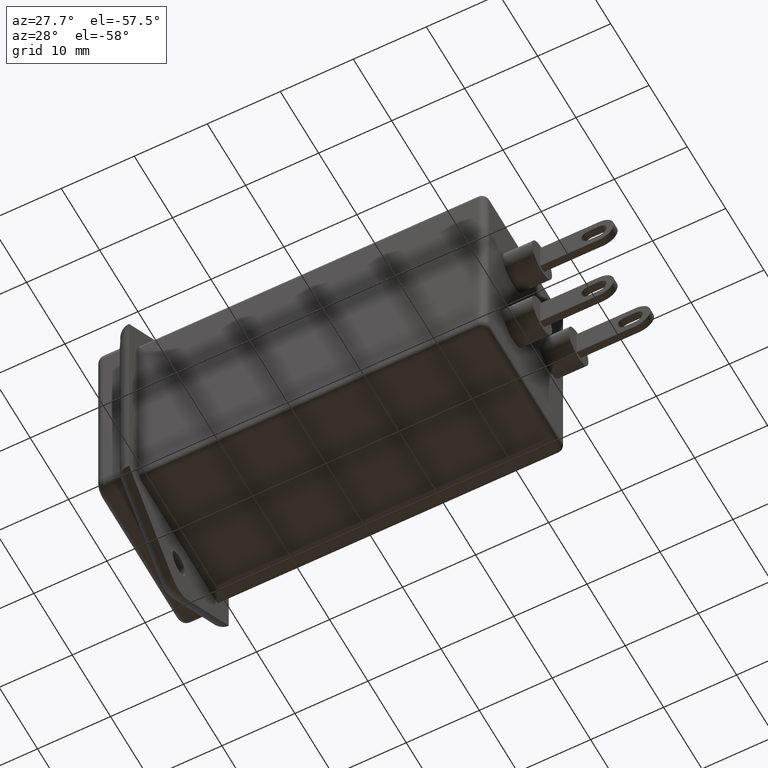
[diagram: clean part render]
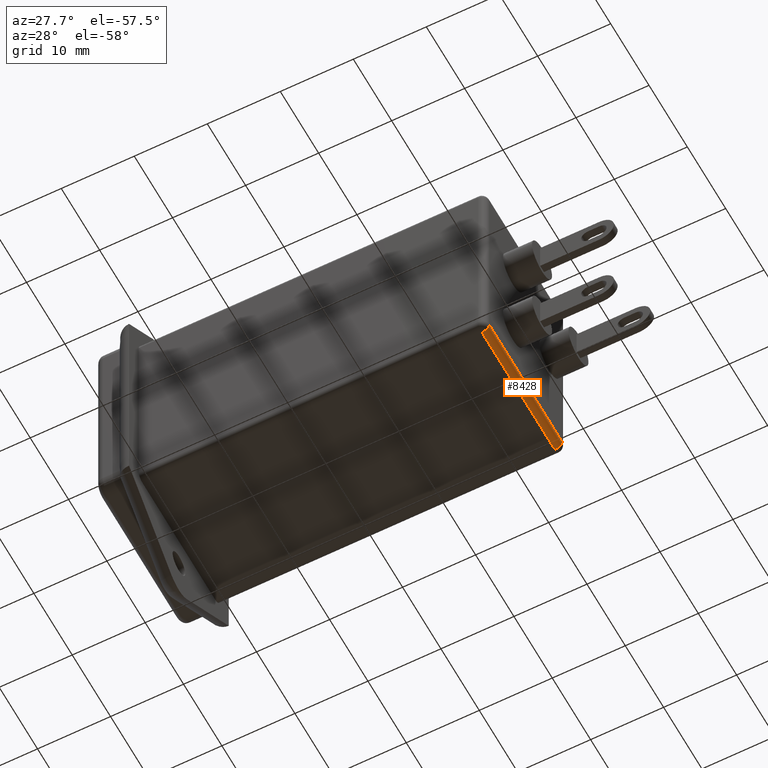
[diagram: same view with one face highlighted and labeled with its STEP entity id]
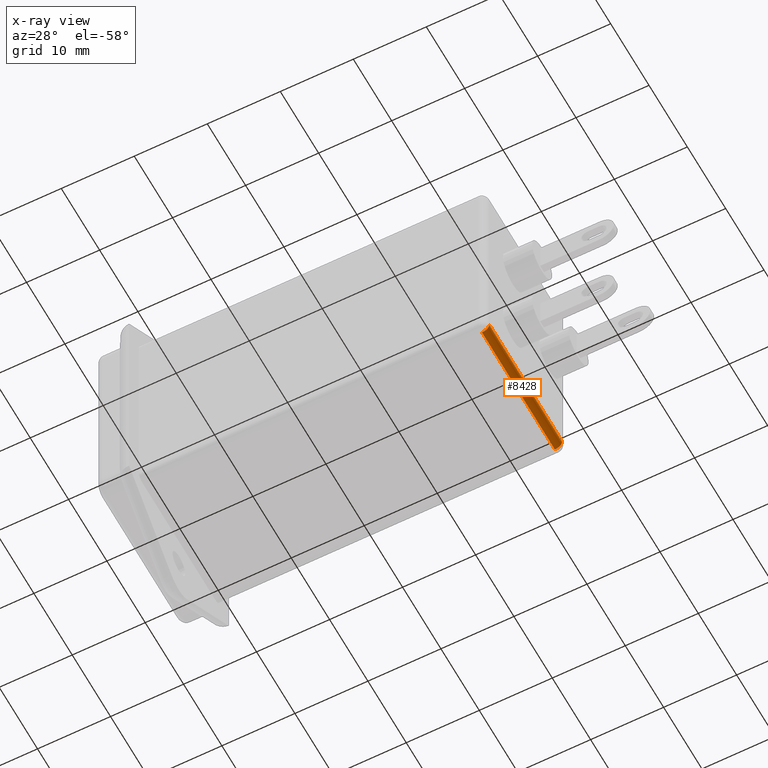
[diagram: x-ray of the same camera — body ghosted, the highlighted face saturated]
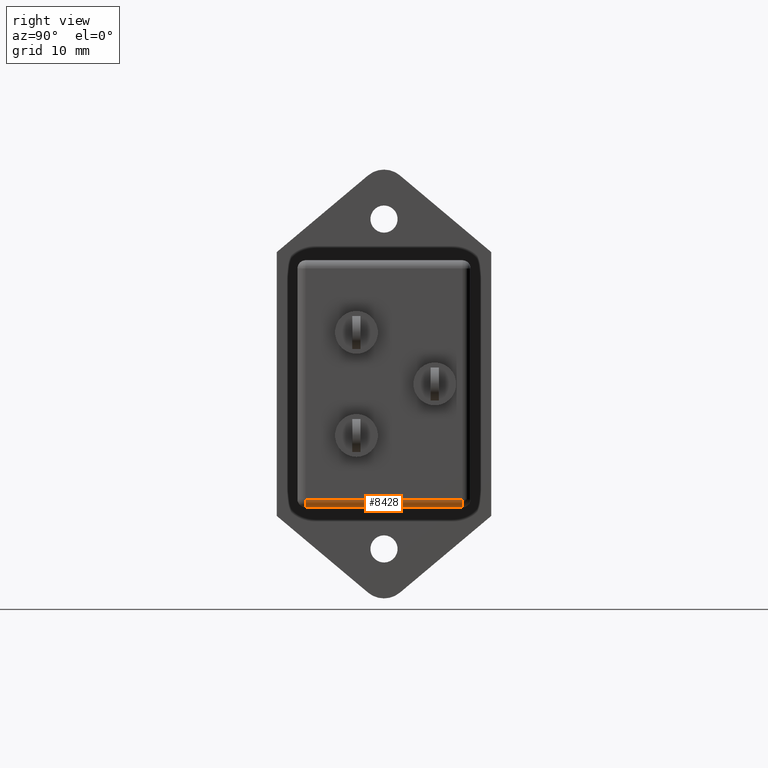
[diagram: same view with one face highlighted and labeled with its STEP entity id]
A machine part, auxiliary view. The second image highlights one B-rep face of the part: STEP entity #8428.
The next image is the same camera in x-ray: the body ghosted, the highlighted face saturated — about 0% of this face is hidden behind the body in this view.
A second angle (right view) of the same face is appended — the face is thin or edge-on in the first view.
In plain terms, the highlighted cylindrical surface (edge-blend (fillet) strip) has radius 1 mm, axis along (0, -1, 0).
Its self-contained STEP definition (entity closure, byte-faithful):
#31 = CARTESIAN_POINT ( 'NONE',  ( 51.89999999999999900, -1.999999999999997300, 0.4999999999999997800 ) ) ;
#220 = CARTESIAN_POINT ( 'NONE',  ( 51.89999999999999900, -20.99999999999999600, 1.499999999999999800 ) ) ;
#529 = CIRCLE ( 'NONE', #709, 1.000000000000000000 ) ;
#532 = AXIS2_PLACEMENT_3D ( 'NONE', #3259, #646, #1320 ) ;
#646 = DIRECTION ( 'NONE',  ( 0.0000000000000000000, -1.000000000000000000, 0.0000000000000000000 ) ) ;
#709 = AXIS2_PLACEMENT_3D ( 'NONE', #5903, #3888, #4484 ) ;
#1043 = ORIENTED_EDGE ( 'NONE', *, *, #2075, .F. ) ;
#1100 = VECTOR ( 'NONE', #5094, 1000.000000000000000 ) ;
#1320 = DIRECTION ( 'NONE',  ( 0.0000000000000000000, 0.0000000000000000000, -1.000000000000000000 ) ) ;
#1524 = ORIENTED_EDGE ( 'NONE', *, *, #3885, .T. ) ;
#2075 = EDGE_CURVE ( 'NONE', #4379, #7516, #3340, .T. ) ;
#2118 = CARTESIAN_POINT ( 'NONE',  ( 52.90000000000000600, -0.9999999999999974500, 1.499999999999999600 ) ) ;
#2503 = VECTOR ( 'NONE', #4745, 1000.000000000000000 ) ;
#2564 = FACE_OUTER_BOUND ( 'NONE', #2614, .T. ) ;
#2614 = EDGE_LOOP ( 'NONE', ( #1524, #1043, #8422, #8142 ) ) ;
#2664 = CARTESIAN_POINT ( 'NONE',  ( 52.90000000000000600, -20.99999999999999600, 1.499999999999999600 ) ) ;
#2872 = EDGE_CURVE ( 'NONE', #7859, #3985, #4966, .T. ) ;
#3107 = CARTESIAN_POINT ( 'NONE',  ( 51.89999999999999900, -22.00000000000000000, 0.4999999999999997800 ) ) ;
#3259 = CARTESIAN_POINT ( 'NONE',  ( 51.89999999999999900, 0.0000000000000000000, 1.499999999999999600 ) ) ;
#3340 = LINE ( 'NONE', #2118, #2503 ) ;
#3435 = EDGE_CURVE ( 'NONE', #3985, #4379, #4516, .T. ) ;
#3885 = EDGE_CURVE ( 'NONE', #7859, #7516, #529, .T. ) ;
#3888 = DIRECTION ( 'NONE',  ( 0.0000000000000000000, -1.000000000000000000, -0.0000000000000000000 ) ) ;
#3985 = VERTEX_POINT ( 'NONE', #7098 ) ;
#4379 = VERTEX_POINT ( 'NONE', #2664 ) ;
#4484 = DIRECTION ( 'NONE',  ( 0.0000000000000000000, 0.0000000000000000000, 1.000000000000000000 ) ) ;
#4516 = CIRCLE ( 'NONE', #6386, 1.000000000000000000 ) ;
#4745 = DIRECTION ( 'NONE',  ( 0.0000000000000000000, 1.000000000000000000, -0.0000000000000000000 ) ) ;
#4966 = LINE ( 'NONE', #3107, #1100 ) ;
#5094 = DIRECTION ( 'NONE',  ( -0.0000000000000000000, -1.000000000000000000, 0.0000000000000000000 ) ) ;
#5659 = DIRECTION ( 'NONE',  ( 0.0000000000000000000, -1.000000000000000000, 0.0000000000000000000 ) ) ;
#5903 = CARTESIAN_POINT ( 'NONE',  ( 51.89999999999999900, -1.999999999999997300, 1.499999999999999600 ) ) ;
#6086 = CARTESIAN_POINT ( 'NONE',  ( 52.90000000000000600, -1.999999999999997300, 1.499999999999999600 ) ) ;
#6386 = AXIS2_PLACEMENT_3D ( 'NONE', #220, #5659, #8285 ) ;
#7098 = CARTESIAN_POINT ( 'NONE',  ( 51.89999999999999900, -20.99999999999999600, 0.4999999999999997800 ) ) ;
#7516 = VERTEX_POINT ( 'NONE', #6086 ) ;
#7859 = VERTEX_POINT ( 'NONE', #31 ) ;
#8108 = CYLINDRICAL_SURFACE ( 'NONE', #532, 1.000000000000000000 ) ;
#8142 = ORIENTED_EDGE ( 'NONE', *, *, #2872, .F. ) ;
#8285 = DIRECTION ( 'NONE',  ( 0.0000000000000000000, 0.0000000000000000000, -1.000000000000000000 ) ) ;
#8422 = ORIENTED_EDGE ( 'NONE', *, *, #3435, .F. ) ;
#8428 = ADVANCED_FACE ( 'NONE', ( #2564 ), #8108, .T. ) ;